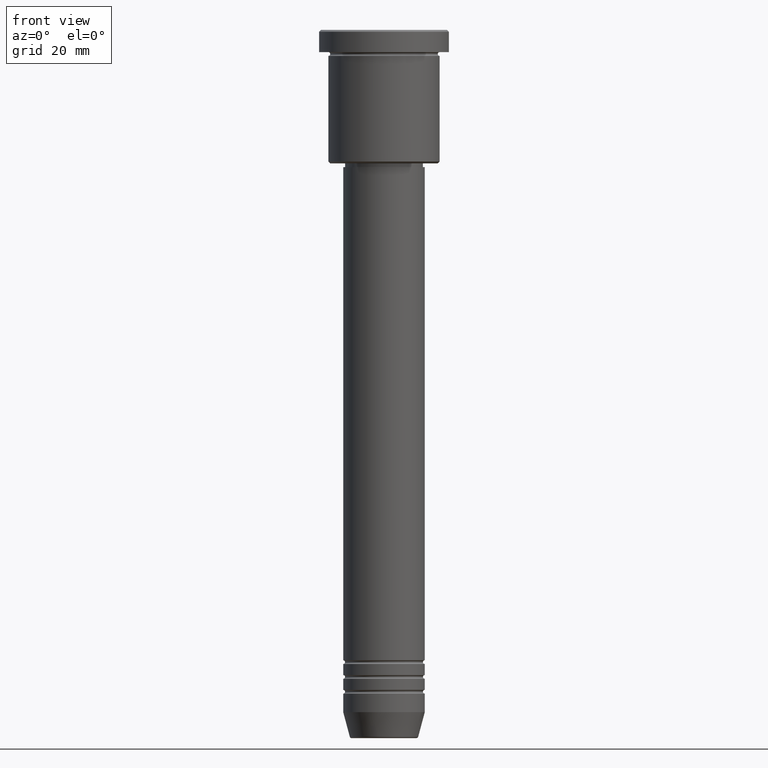
[diagram: clean part render]
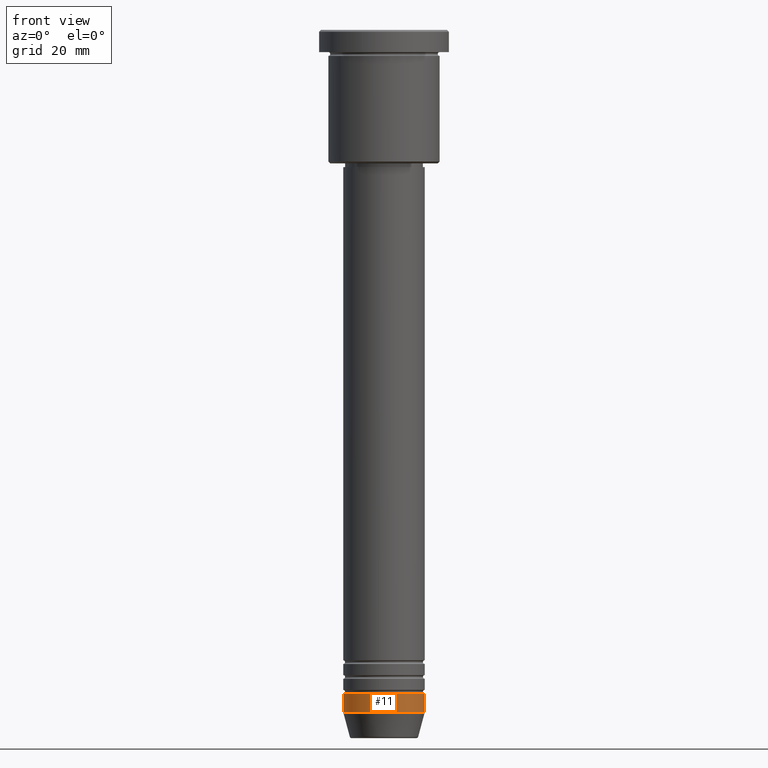
[diagram: same view with one face highlighted and labeled with its STEP entity id]
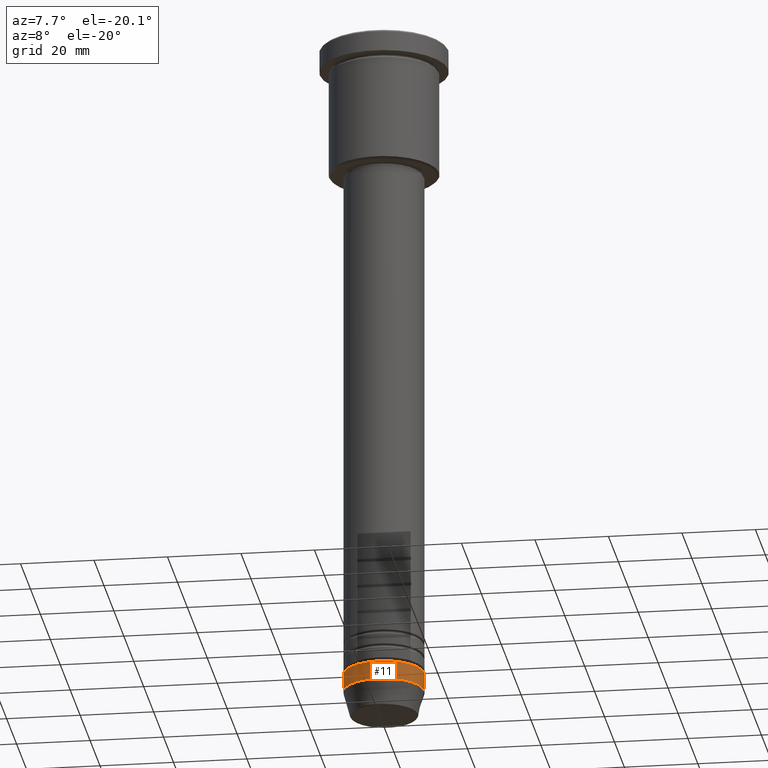
[diagram: same view with one face highlighted and labeled with its STEP entity id]
A machine part, front view. The second image highlights one B-rep face of the part: STEP entity #11.
A second angle (auxiliary view) of the same face is appended — the face is thin or edge-on in the first view.
In plain terms, the highlighted cylindrical surface (partial cylindrical patch) has radius 11 mm, axis along (-0, -0, 1).
Its self-contained STEP definition (entity closure, byte-faithful):
#2 = VERTEX_POINT ( 'NONE', #1161 ) ;
#11 = ADVANCED_FACE ( 'NONE', ( #682 ), #1156, .T. ) ;
#20 = CARTESIAN_POINT ( 'NONE',  ( 0.000000000000000000, 0.000000000000000000, -179.0000000000000284 ) ) ;
#66 = EDGE_CURVE ( 'NONE', #1059, #1053, #710, .T. ) ;
#82 = AXIS2_PLACEMENT_3D ( 'NONE', #20, #772, #388 ) ;
#132 = AXIS2_PLACEMENT_3D ( 'NONE', #1051, #247, #1045 ) ;
#141 = DIRECTION ( 'NONE',  ( -0.000000000000000000, -0.000000000000000000, 1.000000000000000000 ) ) ;
#164 = ORIENTED_EDGE ( 'NONE', *, *, #66, .T. ) ;
#165 = DIRECTION ( 'NONE',  ( -0.000000000000000000, -0.000000000000000000, 1.000000000000000000 ) ) ;
#201 = ORIENTED_EDGE ( 'NONE', *, *, #792, .F. ) ;
#241 = DIRECTION ( 'NONE',  ( 1.000000000000000000, 0.000000000000000000, 0.000000000000000000 ) ) ;
#247 = DIRECTION ( 'NONE',  ( -0.000000000000000000, -0.000000000000000000, 1.000000000000000000 ) ) ;
#266 = AXIS2_PLACEMENT_3D ( 'NONE', #1144, #141, #241 ) ;
#388 = DIRECTION ( 'NONE',  ( 1.000000000000000000, 0.000000000000000000, 0.000000000000000000 ) ) ;
#430 = CARTESIAN_POINT ( 'NONE',  ( -11.00000000000000000, 1.347111479062088405E-15, -179.0000000000000284 ) ) ;
#455 = EDGE_CURVE ( 'NONE', #1059, #895, #984, .T. ) ;
#505 = VECTOR ( 'NONE', #165, 1000.000000000000000 ) ;
#583 = ORIENTED_EDGE ( 'NONE', *, *, #455, .F. ) ;
#618 = CIRCLE ( 'NONE', #82, 11.00000000000000000 ) ;
#682 = FACE_OUTER_BOUND ( 'NONE', #814, .T. ) ;
#710 = CIRCLE ( 'NONE', #266, 11.00000000000000000 ) ;
#732 = CARTESIAN_POINT ( 'NONE',  ( -11.00000000000000000, 1.347111479062088405E-15, -184.0000000000000000 ) ) ;
#772 = DIRECTION ( 'NONE',  ( -0.000000000000000000, -0.000000000000000000, 1.000000000000000000 ) ) ;
#792 = EDGE_CURVE ( 'NONE', #895, #2, #618, .T. ) ;
#814 = EDGE_LOOP ( 'NONE', ( #583, #164, #1169, #201 ) ) ;
#861 = EDGE_CURVE ( 'NONE', #1053, #2, #975, .T. ) ;
#895 = VERTEX_POINT ( 'NONE', #430 ) ;
#975 = LINE ( 'NONE', #983, #505 ) ;
#983 = CARTESIAN_POINT ( 'NONE',  ( 11.00000000000000000, 0.000000000000000000, 0.000000000000000000 ) ) ;
#984 = LINE ( 'NONE', #1077, #994 ) ;
#994 = VECTOR ( 'NONE', #1166, 1000.000000000000000 ) ;
#1045 = DIRECTION ( 'NONE',  ( 1.000000000000000000, 0.000000000000000000, 0.000000000000000000 ) ) ;
#1051 = CARTESIAN_POINT ( 'NONE',  ( 0.000000000000000000, 0.000000000000000000, 0.000000000000000000 ) ) ;
#1053 = VERTEX_POINT ( 'NONE', #1081 ) ;
#1059 = VERTEX_POINT ( 'NONE', #732 ) ;
#1077 = CARTESIAN_POINT ( 'NONE',  ( -11.00000000000000000, 1.347111479062088405E-15, 0.000000000000000000 ) ) ;
#1081 = CARTESIAN_POINT ( 'NONE',  ( 11.00000000000000000, 0.000000000000000000, -184.0000000000000000 ) ) ;
#1144 = CARTESIAN_POINT ( 'NONE',  ( 0.000000000000000000, 0.000000000000000000, -184.0000000000000000 ) ) ;
#1156 = CYLINDRICAL_SURFACE ( 'NONE', #132, 11.00000000000000000 ) ;
#1161 = CARTESIAN_POINT ( 'NONE',  ( 11.00000000000000000, 0.000000000000000000, -179.0000000000000284 ) ) ;
#1166 = DIRECTION ( 'NONE',  ( -0.000000000000000000, -0.000000000000000000, 1.000000000000000000 ) ) ;
#1169 = ORIENTED_EDGE ( 'NONE', *, *, #861, .T. ) ;